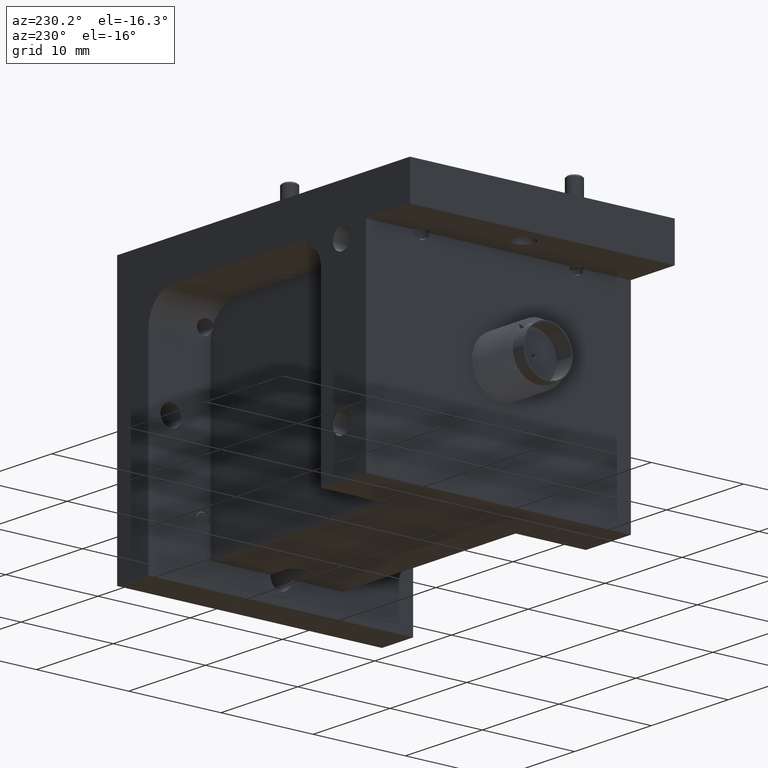
[diagram: clean part render]
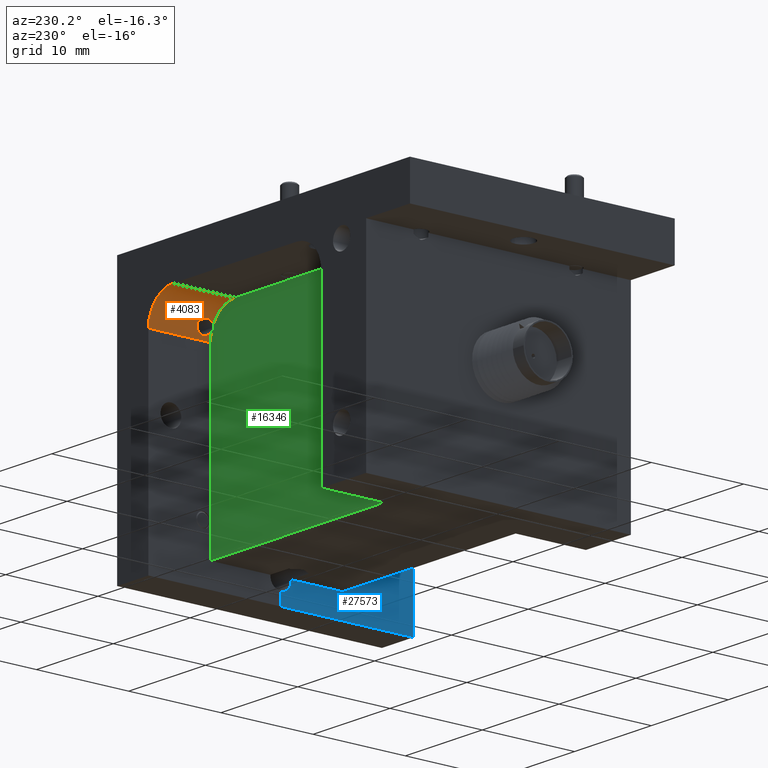
[diagram: same view with three faces highlighted in distinct colors, each labeled with its STEP entity id]
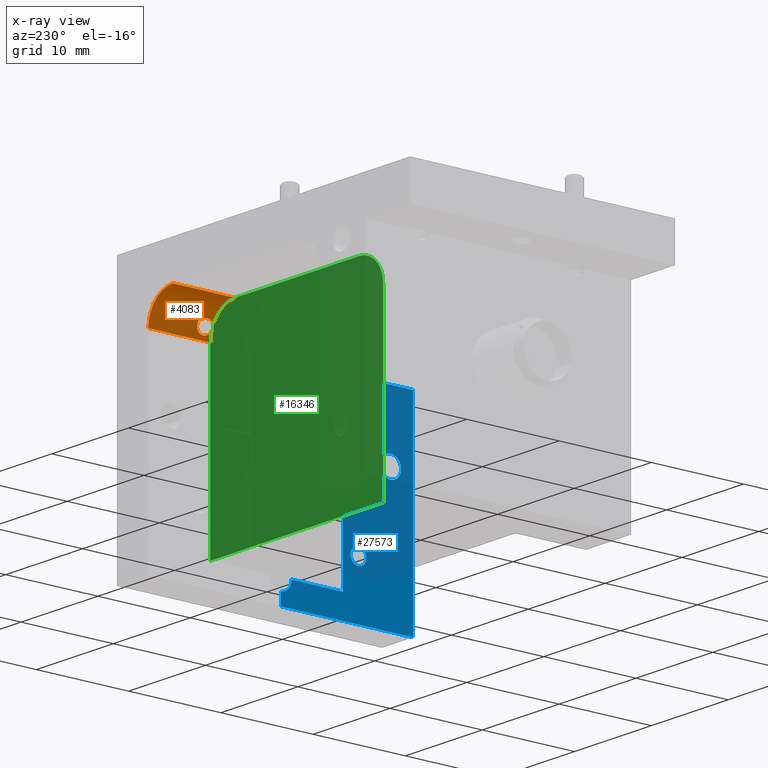
[diagram: x-ray of the same camera — body ghosted, the three highlighted faces saturated]
A machine part, auxiliary view with three faces highlighted in distinct colors.
The next image is the same camera in x-ray (body ghosted, the three faces saturated) — at least one of them is partly hidden behind the body in this view.
Their STEP definitions:

[orange] entity #4083 — the highlighted cylindrical surface (partial cylindrical patch) has radius 3.175 mm, axis along (0, -1, 0).
#79 = CARTESIAN_POINT ( 'NONE',  ( 0.5887035616225907400, 0.8964563036812591700, 0.2979563036810608500 ) ) ;
#531 = ORIENTED_EDGE ( 'NONE', *, *, #28398, .F. ) ;
#1275 = DIRECTION ( 'NONE',  ( 0.0000000000000000000, 1.000000000000000000, 0.0000000000000000000 ) ) ;
#1353 = VERTEX_POINT ( 'NONE', #23180 ) ;
#2371 = VECTOR ( 'NONE', #28613, 39.37007874015748100 ) ;
#2441 = AXIS2_PLACEMENT_3D ( 'NONE', #3128, #20271, #5606 ) ;
#2612 = EDGE_CURVE ( 'NONE', #18285, #20434, #30743, .T. ) ;
#2718 = DIRECTION ( 'NONE',  ( -0.0000000000000000000, 1.000000000000000000, 0.0000000000000000000 ) ) ;
#3128 = CARTESIAN_POINT ( 'NONE',  ( 0.4650000000000001400, 1.129999999999999900, 0.2800000000000001400 ) ) ;
#3138 = CYLINDRICAL_SURFACE ( 'NONE', #20884, 0.1250000000000000000 ) ;
#4010 = CARTESIAN_POINT ( 'NONE',  ( 0.5884304576318797300, 0.8826862379350286500, 0.3001560212217959700 ) ) ;
#4083 = ADVANCED_FACE ( 'NONE', ( #21926 ), #3138, .F. ) ;
#4356 = CARTESIAN_POINT ( 'NONE',  ( 0.4650000000000001400, 0.8649999999999997700, 0.4050000000000001400 ) ) ;
#4733 = VERTEX_POINT ( 'NONE', #11362 ) ;
#4753 = CARTESIAN_POINT ( 'NONE',  ( 0.5725381163978831000, 0.8693965829894760900, 0.3438524915242256500 ) ) ;
#5606 = DIRECTION ( 'NONE',  ( -1.639108796198557500E-015, 0.0000000000000000000, 1.000000000000000000 ) ) ;
#6596 = CARTESIAN_POINT ( 'NONE',  ( 0.5885395457930509000, 0.9069196680846576300, 0.2992033168752212800 ) ) ;
#6603 = CARTESIAN_POINT ( 'NONE',  ( 0.5887035616225907400, 0.8964563036812591700, 0.2979563036810608500 ) ) ;
#6984 = CARTESIAN_POINT ( 'NONE',  ( 0.5749999999999996200, 0.9290077450612442800, 0.3393717104351906500 ) ) ;
#7078 = CARTESIAN_POINT ( 'NONE',  ( 0.5679611242179438700, 0.8852895754666922900, 0.3509239926664147200 ) ) ;
#7342 = ORIENTED_EDGE ( 'NONE', *, *, #10667, .F. ) ;
#7484 = AXIS2_PLACEMENT_3D ( 'NONE', #14747, #27584, #22650 ) ;
#9000 = CARTESIAN_POINT ( 'NONE',  ( 0.5834222167934290900, 0.9284415346381825800, 0.3203487204907657900 ) ) ;
#9050 = AXIS2_PLACEMENT_3D ( 'NONE', #11572, #1275, #23693 ) ;
#9080 = EDGE_CURVE ( 'NONE', #12549, #18285, #27101, .T. ) ;
#9432 = CARTESIAN_POINT ( 'NONE',  ( 0.5730253427130611600, 0.9247359704974970100, 0.3430302255760053800 ) ) ;
#9546 = CARTESIAN_POINT ( 'NONE',  ( 0.5671314224633633400, 0.8912989909759003700, 0.3520707190618338500 ) ) ;
#9680 = DIRECTION ( 'NONE',  ( 0.0000000000000000000, -1.000000000000000000, 0.0000000000000000000 ) ) ;
#10299 = DIRECTION ( 'NONE',  ( 0.0000000000000000000, 0.0000000000000000000, -1.000000000000000000 ) ) ;
#10667 = EDGE_CURVE ( 'NONE', #29294, #21017, #20281, .T. ) ;
#10685 = CARTESIAN_POINT ( 'NONE',  ( 0.5745023042686414600, 0.8649999999999998800, 0.3402847025360324900 ) ) ;
#10932 = ORIENTED_EDGE ( 'NONE', *, *, #18978, .F. ) ;
#10984 = EDGE_LOOP ( 'NONE', ( #19737, #22942, #31208, #7342, #10932, #531, #15188, #30426 ) ) ;
#11362 = CARTESIAN_POINT ( 'NONE',  ( 0.5899999999999998600, 0.8649999999999997700, 0.2800000000000000800 ) ) ;
#11572 = CARTESIAN_POINT ( 'NONE',  ( 0.4650000000000001400, 0.8649999999999997700, 0.2800000000000001400 ) ) ;
#11866 = CARTESIAN_POINT ( 'NONE',  ( 0.5711381327101857600, 0.9198437458389165900, 0.3460810377277372400 ) ) ;
#12549 = VERTEX_POINT ( 'NONE', #23263 ) ;
#12990 = CIRCLE ( 'NONE', #2441, 0.1250000000000000300 ) ;
#13863 = CARTESIAN_POINT ( 'NONE',  ( 0.4650000000000002500, 0.8649999999999997700, 0.4050000000000001400 ) ) ;
#14039 = CARTESIAN_POINT ( 'NONE',  ( 0.5870319807642678800, 0.9203288492447576600, 0.3074067752213400800 ) ) ;
#14335 = CARTESIAN_POINT ( 'NONE',  ( 0.5707051661074288300, 0.8743394731649422000, 0.3467654378714719600 ) ) ;
#14437 = EDGE_CURVE ( 'NONE', #20434, #21017, #19646, .T. ) ;
#14451 = CARTESIAN_POINT ( 'NONE',  ( 0.5672770762093809500, 0.9031670767750253900, 0.3518638691036063400 ) ) ;
#14747 = CARTESIAN_POINT ( 'NONE',  ( 0.4650000000000001400, 0.8649999999999997700, 0.2800000000000001400 ) ) ;
#15188 = ORIENTED_EDGE ( 'NONE', *, *, #15564, .F. ) ;
#15564 = EDGE_CURVE ( 'NONE', #4733, #23652, #23882, .T. ) ;
#16384 = CARTESIAN_POINT ( 'NONE',  ( 0.5774510828940916400, 0.9301120121703486700, 0.3348305052656943600 ) ) ;
#16497 = CARTESIAN_POINT ( 'NONE',  ( 0.5848971691627562500, 0.9264056736409112000, 0.3156034335990380900 ) ) ;
#18285 = VERTEX_POINT ( 'NONE', #79 ) ;
#18978 = EDGE_CURVE ( 'NONE', #1353, #29294, #24594, .T. ) ;
#19524 = CARTESIAN_POINT ( 'NONE',  ( 0.5900000000000001900, 1.129999999999999900, 0.2800000000000000800 ) ) ;
#19646 = B_SPLINE_CURVE_WITH_KNOTS ( 'NONE', 3,
 ( #6984, #9432, #11866, #28996, #14451, #9546, #7078, #14335, #4753, #21865 ),
 .UNSPECIFIED., .F., .F.,
 ( 4, 2, 2, 2, 4 ),
 ( 0.0001515618318229038900, 0.0006047793008217363900, 0.001057996769820569100, 0.001511214238819401600, 0.001964431707818234100 ),
 .UNSPECIFIED. ) ;
#19737 = ORIENTED_EDGE ( 'NONE', *, *, #9080, .T. ) ;
#20271 = DIRECTION ( 'NONE',  ( -0.0000000000000000000, -1.000000000000000000, -0.0000000000000000000 ) ) ;
#20281 = CIRCLE ( 'NONE', #7484, 0.1250000000000000300 ) ;
#20434 = VERTEX_POINT ( 'NONE', #21510 ) ;
#20884 = AXIS2_PLACEMENT_3D ( 'NONE', #24325, #9680, #10299 ) ;
#21017 = VERTEX_POINT ( 'NONE', #10685 ) ;
#21441 = CARTESIAN_POINT ( 'NONE',  ( 0.5749999999999996200, 0.9290077450612442800, 0.3393717104351906500 ) ) ;
#21510 = CARTESIAN_POINT ( 'NONE',  ( 0.5749999999999996200, 0.9290077450612442800, 0.3393717104351906500 ) ) ;
#21865 = CARTESIAN_POINT ( 'NONE',  ( 0.5745023042686414600, 0.8649999999999998800, 0.3402847025360324900 ) ) ;
#21926 = FACE_OUTER_BOUND ( 'NONE', #10984, .T. ) ;
#22650 = DIRECTION ( 'NONE',  ( 0.0000000000000000000, 0.0000000000000000000, 1.000000000000000000 ) ) ;
#22942 = ORIENTED_EDGE ( 'NONE', *, *, #2612, .T. ) ;
#23180 = CARTESIAN_POINT ( 'NONE',  ( 0.4650000000000002500, 1.129999999999999900, 0.4050000000000001400 ) ) ;
#23263 = CARTESIAN_POINT ( 'NONE',  ( 0.5834492812939922100, 0.8649999999999997700, 0.3199345434547180000 ) ) ;
#23652 = VERTEX_POINT ( 'NONE', #19524 ) ;
#23693 = DIRECTION ( 'NONE',  ( 0.0000000000000000000, 0.0000000000000000000, 1.000000000000000000 ) ) ;
#23694 = CARTESIAN_POINT ( 'NONE',  ( 0.5834492812939922100, 0.8649999999999997700, 0.3199345434547180000 ) ) ;
#23808 = CARTESIAN_POINT ( 'NONE',  ( 0.5855495944801175600, 0.8672818070063641500, 0.3137048343891579700 ) ) ;
#23882 = LINE ( 'NONE', #29672, #28463 ) ;
#24325 = CARTESIAN_POINT ( 'NONE',  ( 0.4650000000000001400, 0.0000000000000000000, 0.2800000000000001400 ) ) ;
#24594 = LINE ( 'NONE', #4356, #2371 ) ;
#26059 = CARTESIAN_POINT ( 'NONE',  ( 0.5868701424246590700, 0.8714901715061379500, 0.3080893475912502300 ) ) ;
#26250 = CARTESIAN_POINT ( 'NONE',  ( 0.5887035616225907400, 0.8964563036812591700, 0.2979563036810608500 ) ) ;
#27101 = B_SPLINE_CURVE_WITH_KNOTS ( 'NONE', 3,
 ( #23694, #23808, #26059, #4010, #28285, #6603 ),
 .UNSPECIFIED., .F., .F.,
 ( 4, 2, 4 ),
 ( 0.0000000000000000000, 0.0005229522095895671900, 0.001045904419179134400 ),
 .UNSPECIFIED. ) ;
#27584 = DIRECTION ( 'NONE',  ( 0.0000000000000000000, 1.000000000000000000, 0.0000000000000000000 ) ) ;
#28285 = CARTESIAN_POINT ( 'NONE',  ( 0.5887035616225716500, 0.8895785185847812100, 0.2979563036811775900 ) ) ;
#28398 = EDGE_CURVE ( 'NONE', #23652, #1353, #12990, .T. ) ;
#28463 = VECTOR ( 'NONE', #2718, 39.37007874015748100 ) ;
#28613 = DIRECTION ( 'NONE',  ( -0.0000000000000000000, -1.000000000000000000, 0.0000000000000000000 ) ) ;
#28714 = CARTESIAN_POINT ( 'NONE',  ( 0.5877092290867999000, 0.9162733315895667000, 0.3039422607680791200 ) ) ;
#28996 = CARTESIAN_POINT ( 'NONE',  ( 0.5682455434615868400, 0.9091107926095516300, 0.3505149949847631300 ) ) ;
#29294 = VERTEX_POINT ( 'NONE', #13863 ) ;
#29672 = CARTESIAN_POINT ( 'NONE',  ( 0.5900000000000001900, 1.129999999999999900, 0.2800000000000000300 ) ) ;
#30426 = ORIENTED_EDGE ( 'NONE', *, *, #30923, .F. ) ;
#30515 = CIRCLE ( 'NONE', #9050, 0.1250000000000000300 ) ;
#30743 = B_SPLINE_CURVE_WITH_KNOTS ( 'NONE', 3,
 ( #26250, #31272, #6596, #28714, #14039, #16497, #9000, #31064, #16384, #21441 ),
 .UNSPECIFIED., .F., .F.,
 ( 4, 2, 2, 2, 4 ),
 ( 0.001045904419179134400, 0.001443005992771600000, 0.001840107566364065600, 0.002237209139956533300, 0.002634310713549001100 ),
 .UNSPECIFIED. ) ;
#30923 = EDGE_CURVE ( 'NONE', #12549, #4733, #30515, .T. ) ;
#31064 = CARTESIAN_POINT ( 'NONE',  ( 0.5796771802956074400, 0.9302844158440143300, 0.3300098489795828500 ) ) ;
#31208 = ORIENTED_EDGE ( 'NONE', *, *, #14437, .T. ) ;
#31272 = CARTESIAN_POINT ( 'NONE',  ( 0.5887035616225678700, 0.9016789210343697500, 0.2979563036812035700 ) ) ;

[blue] entity #27573 — the highlighted planar face has unit normal (1, -0, 0).
#1072 = VERTEX_POINT ( 'NONE', #19387 ) ;
#1250 = CARTESIAN_POINT ( 'NONE',  ( 0.5900000000000007500, 0.09624999999999989100, -2.731847993664263200E-016 ) ) ;
#1292 = AXIS2_PLACEMENT_3D ( 'NONE', #16431, #3946, #6726 ) ;
#1307 = EDGE_CURVE ( 'NONE', #11468, #18247, #16291, .T. ) ;
#1466 = CARTESIAN_POINT ( 'NONE',  ( 0.5900000000000009700, 0.2335436963188040900, -0.3649563036811925300 ) ) ;
#1706 = CARTESIAN_POINT ( 'NONE',  ( 0.5900000000000007500, 0.09624999999999989100, 0.04449999999999947100 ) ) ;
#1811 = DIRECTION ( 'NONE',  ( 1.000000000000000000, -1.387778780781150200E-017, 5.025507569144795400E-016 ) ) ;
#2235 = ORIENTED_EDGE ( 'NONE', *, *, #5697, .F. ) ;
#2977 = VERTEX_POINT ( 'NONE', #1466 ) ;
#3225 = EDGE_CURVE ( 'NONE', #5963, #25840, #21975, .T. ) ;
#3816 = VERTEX_POINT ( 'NONE', #13070 ) ;
#3946 = DIRECTION ( 'NONE',  ( 1.000000000000000000, -1.387778780781150200E-017, 5.025507569144795400E-016 ) ) ;
#4805 = ORIENTED_EDGE ( 'NONE', *, *, #22871, .T. ) ;
#5123 = AXIS2_PLACEMENT_3D ( 'NONE', #1250, #15923, #30388 ) ;
#5697 = EDGE_CURVE ( 'NONE', #25840, #3816, #15316, .T. ) ;
#5877 = CARTESIAN_POINT ( 'NONE',  ( 0.5900000000000009700, 0.5649999999999999500, -0.5650000000000001700 ) ) ;
#5888 = DIRECTION ( 'NONE',  ( 0.0000000000000000000, 0.0000000000000000000, -1.000000000000000000 ) ) ;
#5963 = VERTEX_POINT ( 'NONE', #12806 ) ;
#6098 = VECTOR ( 'NONE', #27250, 39.37007874015748100 ) ;
#6197 = DIRECTION ( 'NONE',  ( -5.025507569144795400E-016, -4.050170708694923500E-018, 1.000000000000000000 ) ) ;
#6726 = DIRECTION ( 'NONE',  ( 0.0000000000000000000, 0.0000000000000000000, -1.000000000000000000 ) ) ;
#6950 = VECTOR ( 'NONE', #20494, 39.37007874015748100 ) ;
#7545 = CARTESIAN_POINT ( 'NONE',  ( 0.5900000000000009700, 0.3000000000000000400, -0.4650000000000003600 ) ) ;
#8068 = LINE ( 'NONE', #20193, #6950 ) ;
#8097 = EDGE_CURVE ( 'NONE', #12849, #22332, #11012, .T. ) ;
#8567 = DIRECTION ( 'NONE',  ( 2.340848324502109100E-017, -4.050170708694930500E-018, 1.000000000000000000 ) ) ;
#9317 = ORIENTED_EDGE ( 'NONE', *, *, #29565, .T. ) ;
#9361 = ORIENTED_EDGE ( 'NONE', *, *, #16086, .T. ) ;
#10383 = CARTESIAN_POINT ( 'NONE',  ( 0.5900000000000009700, 0.5649999999999999500, -0.5650000000000001700 ) ) ;
#10741 = DIRECTION ( 'NONE',  ( 1.000000000000000000, -1.387778780781150200E-017, 5.025507569144795400E-016 ) ) ;
#11012 = CIRCLE ( 'NONE', #16208, 0.04449999999999974100 ) ;
#11108 = VECTOR ( 'NONE', #8567, 39.37007874015748100 ) ;
#11283 = EDGE_LOOP ( 'NONE', ( #20153, #21093, #29724, #26401, #9317, #9361, #2235 ) ) ;
#11468 = VERTEX_POINT ( 'NONE', #30369 ) ;
#11989 = AXIS2_PLACEMENT_3D ( 'NONE', #18344, #10741, #27856 ) ;
#12122 = ORIENTED_EDGE ( 'NONE', *, *, #26064, .T. ) ;
#12436 = EDGE_CURVE ( 'NONE', #25023, #2977, #21328, .T. ) ;
#12806 = CARTESIAN_POINT ( 'NONE',  ( 0.5900000000000009700, 0.5206582871327687400, -0.4650000000000003600 ) ) ;
#12849 = VERTEX_POINT ( 'NONE', #27339 ) ;
#12936 = ORIENTED_EDGE ( 'NONE', *, *, #8097, .T. ) ;
#13070 = CARTESIAN_POINT ( 'NONE',  ( 0.5900000000000009700, 0.3000000000000000400, 0.2799999999999997500 ) ) ;
#13202 = VECTOR ( 'NONE', #6197, 39.37007874015748100 ) ;
#13806 = CARTESIAN_POINT ( 'NONE',  ( 0.5900000000000007500, 0.09624999999999989100, -2.731847993664263200E-016 ) ) ;
#14216 = FACE_BOUND ( 'NONE', #22739, .T. ) ;
#14247 = DIRECTION ( 'NONE',  ( 0.0000000000000000000, 0.0000000000000000000, -1.000000000000000000 ) ) ;
#15316 = LINE ( 'NONE', #20896, #11108 ) ;
#15923 = DIRECTION ( 'NONE',  ( 1.000000000000000000, -1.387778780781150200E-017, 5.025507569144795400E-016 ) ) ;
#16086 = EDGE_CURVE ( 'NONE', #26720, #3816, #16955, .T. ) ;
#16208 = AXIS2_PLACEMENT_3D ( 'NONE', #13806, #1811, #14247 ) ;
#16217 = CIRCLE ( 'NONE', #5123, 0.04449999999999974100 ) ;
#16291 = LINE ( 'NONE', #5877, #13202 ) ;
#16431 = CARTESIAN_POINT ( 'NONE',  ( 0.5900000000000009700, 0.5649999999999999500, -0.4687500000000002800 ) ) ;
#16803 = DIRECTION ( 'NONE',  ( 1.387778780781711000E-017, 1.000000000000000000, 4.050170708698059000E-018 ) ) ;
#16876 = FACE_BOUND ( 'NONE', #28792, .T. ) ;
#16955 = LINE ( 'NONE', #29121, #26918 ) ;
#18120 = VECTOR ( 'NONE', #29199, 39.37007874015748100 ) ;
#18247 = VERTEX_POINT ( 'NONE', #28685 ) ;
#18344 = CARTESIAN_POINT ( 'NONE',  ( 0.5900000000000009700, 0.2335436963188040900, -0.3314563036811927200 ) ) ;
#18450 = CIRCLE ( 'NONE', #1292, 0.04449999999999975500 ) ;
#18998 = ORIENTED_EDGE ( 'NONE', *, *, #12436, .T. ) ;
#19231 = CARTESIAN_POINT ( 'NONE',  ( 0.5900000000000006400, 6.829619984160658000E-017, 0.2799999999999997500 ) ) ;
#19387 = CARTESIAN_POINT ( 'NONE',  ( 0.5900000000000009700, 6.829619984160658000E-017, -0.5650000000000001700 ) ) ;
#19463 = EDGE_CURVE ( 'NONE', #5963, #18247, #18450, .T. ) ;
#19782 = EDGE_CURVE ( 'NONE', #11468, #1072, #8068, .T. ) ;
#19987 = FACE_OUTER_BOUND ( 'NONE', #11283, .T. ) ;
#19999 = CARTESIAN_POINT ( 'NONE',  ( 0.5900000000000009700, 6.829619984160658000E-017, -0.5650000000000001700 ) ) ;
#20153 = ORIENTED_EDGE ( 'NONE', *, *, #3225, .F. ) ;
#20193 = CARTESIAN_POINT ( 'NONE',  ( 0.5900000000000009700, 0.5649999999999999500, -0.5650000000000001700 ) ) ;
#20494 = DIRECTION ( 'NONE',  ( -1.387778780781711000E-017, -1.000000000000000000, -4.050170708698059000E-018 ) ) ;
#20748 = CARTESIAN_POINT ( 'NONE',  ( 0.5900000000000009700, 0.2335436963188040900, -0.3314563036811927200 ) ) ;
#20896 = CARTESIAN_POINT ( 'NONE',  ( 0.5900000000000009700, 0.3000000000000000400, -0.4650000000000003600 ) ) ;
#21093 = ORIENTED_EDGE ( 'NONE', *, *, #19463, .T. ) ;
#21328 = CIRCLE ( 'NONE', #11989, 0.03349999999999979400 ) ;
#21975 = LINE ( 'NONE', #24609, #18120 ) ;
#22332 = VERTEX_POINT ( 'NONE', #1706 ) ;
#22348 = AXIS2_PLACEMENT_3D ( 'NONE', #20748, #23193, #5888 ) ;
#22739 = EDGE_LOOP ( 'NONE', ( #4805, #18998 ) ) ;
#22871 = EDGE_CURVE ( 'NONE', #2977, #25023, #25615, .T. ) ;
#23193 = DIRECTION ( 'NONE',  ( 1.000000000000000000, -1.387778780781150200E-017, 5.025507569144795400E-016 ) ) ;
#24135 = CARTESIAN_POINT ( 'NONE',  ( 0.5900000000000009700, 0.2335436963188040900, -0.2979563036811929700 ) ) ;
#24609 = CARTESIAN_POINT ( 'NONE',  ( 0.5900000000000009700, 0.5649999999999999500, -0.4650000000000003600 ) ) ;
#24851 = DIRECTION ( 'NONE',  ( 1.000000000000000000, -1.387778780781150300E-017, 5.025507569144795400E-016 ) ) ;
#25023 = VERTEX_POINT ( 'NONE', #24135 ) ;
#25615 = CIRCLE ( 'NONE', #22348, 0.03349999999999979400 ) ;
#25840 = VERTEX_POINT ( 'NONE', #7545 ) ;
#26064 = EDGE_CURVE ( 'NONE', #22332, #12849, #16217, .T. ) ;
#26401 = ORIENTED_EDGE ( 'NONE', *, *, #19782, .T. ) ;
#26720 = VERTEX_POINT ( 'NONE', #19231 ) ;
#26918 = VECTOR ( 'NONE', #16803, 39.37007874015748100 ) ;
#27250 = DIRECTION ( 'NONE',  ( -5.025507569144795400E-016, -4.050170708694923500E-018, 1.000000000000000000 ) ) ;
#27339 = CARTESIAN_POINT ( 'NONE',  ( 0.5900000000000007500, 0.09624999999999989100, -0.04450000000000001200 ) ) ;
#27573 = ADVANCED_FACE ( 'NONE', ( #14216, #16876, #19987 ), #30162, .F. ) ;
#27602 = DIRECTION ( 'NONE',  ( -5.025507569144795400E-016, -4.050170708694923500E-018, 1.000000000000000000 ) ) ;
#27856 = DIRECTION ( 'NONE',  ( 0.0000000000000000000, 0.0000000000000000000, -1.000000000000000000 ) ) ;
#28685 = CARTESIAN_POINT ( 'NONE',  ( 0.5900000000000009700, 0.5649999999999999500, -0.5132500000000001000 ) ) ;
#28792 = EDGE_LOOP ( 'NONE', ( #12936, #12122 ) ) ;
#29121 = CARTESIAN_POINT ( 'NONE',  ( 0.5900000000000006400, 0.3000000000000000400, 0.2799999999999998000 ) ) ;
#29199 = DIRECTION ( 'NONE',  ( -1.387778780781711000E-017, -1.000000000000000000, -4.050170708698059000E-018 ) ) ;
#29565 = EDGE_CURVE ( 'NONE', #1072, #26720, #30576, .T. ) ;
#29724 = ORIENTED_EDGE ( 'NONE', *, *, #1307, .F. ) ;
#30162 = PLANE ( 'NONE',  #31337 ) ;
#30369 = CARTESIAN_POINT ( 'NONE',  ( 0.5900000000000009700, 0.5649999999999999500, -0.5650000000000001700 ) ) ;
#30388 = DIRECTION ( 'NONE',  ( 0.0000000000000000000, 0.0000000000000000000, -1.000000000000000000 ) ) ;
#30576 = LINE ( 'NONE', #19999, #6098 ) ;
#31337 = AXIS2_PLACEMENT_3D ( 'NONE', #10383, #24851, #27602 ) ;

[green] entity #16346 — the highlighted planar face has unit normal (0, 1, 0).
#767 = EDGE_CURVE ( 'NONE', #19769, #27495, #14411, .T. ) ;
#1049 = CARTESIAN_POINT ( 'NONE',  ( -0.2950000000000001500, 0.8649999999999997700, 0.4050000000000001400 ) ) ;
#1275 = DIRECTION ( 'NONE',  ( 0.0000000000000000000, 1.000000000000000000, 0.0000000000000000000 ) ) ;
#1316 = VERTEX_POINT ( 'NONE', #8601 ) ;
#1600 = LINE ( 'NONE', #8577, #13860 ) ;
#2169 = VECTOR ( 'NONE', #19417, 39.37007874015748100 ) ;
#3523 = CARTESIAN_POINT ( 'NONE',  ( 0.0000000000000000000, 0.8649999999999997700, 0.0000000000000000000 ) ) ;
#3849 = EDGE_CURVE ( 'NONE', #12549, #16234, #1600, .T. ) ;
#4044 = VERTEX_POINT ( 'NONE', #14366 ) ;
#4733 = VERTEX_POINT ( 'NONE', #11362 ) ;
#5444 = CARTESIAN_POINT ( 'NONE',  ( 0.5899999999999997500, 0.8649999999999997700, -0.4649999999999999100 ) ) ;
#7133 = DIRECTION ( 'NONE',  ( 0.0000000000000000000, 1.000000000000000000, 0.0000000000000000000 ) ) ;
#7484 = AXIS2_PLACEMENT_3D ( 'NONE', #14747, #27584, #22650 ) ;
#8577 = CARTESIAN_POINT ( 'NONE',  ( 0.7499999999999996700, 0.8649999999999997700, 0.3199345434547180000 ) ) ;
#8601 = CARTESIAN_POINT ( 'NONE',  ( -0.1700000000000001800, 0.8649999999999997700, 0.4050000000000001400 ) ) ;
#9050 = AXIS2_PLACEMENT_3D ( 'NONE', #11572, #1275, #23693 ) ;
#9446 = VECTOR ( 'NONE', #24385, 39.37007874015748100 ) ;
#9529 = ORIENTED_EDGE ( 'NONE', *, *, #14192, .T. ) ;
#9793 = DIRECTION ( 'NONE',  ( 0.0000000000000000000, 0.0000000000000000000, 1.000000000000000000 ) ) ;
#9860 = CARTESIAN_POINT ( 'NONE',  ( 0.5734046348194860000, 0.8649999999999997700, 0.3335240664508348800 ) ) ;
#10667 = EDGE_CURVE ( 'NONE', #29294, #21017, #20281, .T. ) ;
#10685 = CARTESIAN_POINT ( 'NONE',  ( 0.5745023042686414600, 0.8649999999999998800, 0.3402847025360324900 ) ) ;
#11087 = EDGE_LOOP ( 'NONE', ( #20334, #21269, #11692, #12466, #17437, #30825, #9529, #21014, #28120 ) ) ;
#11336 = LINE ( 'NONE', #21524, #19783 ) ;
#11362 = CARTESIAN_POINT ( 'NONE',  ( 0.5899999999999998600, 0.8649999999999997700, 0.2800000000000000800 ) ) ;
#11572 = CARTESIAN_POINT ( 'NONE',  ( 0.4650000000000001400, 0.8649999999999997700, 0.2800000000000001400 ) ) ;
#11692 = ORIENTED_EDGE ( 'NONE', *, *, #24147, .T. ) ;
#12356 = CARTESIAN_POINT ( 'NONE',  ( -0.2950000000000002600, 0.8649999999999997700, -0.4649999999999999100 ) ) ;
#12466 = ORIENTED_EDGE ( 'NONE', *, *, #767, .T. ) ;
#12549 = VERTEX_POINT ( 'NONE', #23263 ) ;
#13061 = AXIS2_PLACEMENT_3D ( 'NONE', #24463, #7133, #9793 ) ;
#13435 = DIRECTION ( 'NONE',  ( 0.0000000000000000000, 1.000000000000000000, 0.0000000000000000000 ) ) ;
#13860 = VECTOR ( 'NONE', #25514, 39.37007874015748100 ) ;
#13863 = CARTESIAN_POINT ( 'NONE',  ( 0.4650000000000002500, 0.8649999999999997700, 0.4050000000000001400 ) ) ;
#14192 = EDGE_CURVE ( 'NONE', #1316, #29294, #27764, .T. ) ;
#14366 = CARTESIAN_POINT ( 'NONE',  ( -0.2950000000000001500, 0.8649999999999997700, 0.2800000000000000800 ) ) ;
#14411 = LINE ( 'NONE', #12356, #9446 ) ;
#14747 = CARTESIAN_POINT ( 'NONE',  ( 0.4650000000000001400, 0.8649999999999997700, 0.2800000000000001400 ) ) ;
#14753 = CARTESIAN_POINT ( 'NONE',  ( 0.5745023042686414600, 0.8649999999999998800, 0.3402847025360324900 ) ) ;
#16234 = VERTEX_POINT ( 'NONE', #17867 ) ;
#16311 = AXIS2_PLACEMENT_3D ( 'NONE', #3523, #13435, #30779 ) ;
#16346 = ADVANCED_FACE ( 'NONE', ( #18509 ), #20759, .T. ) ;
#16480 = CARTESIAN_POINT ( 'NONE',  ( 0.5736088429696709600, 0.8649999999999997700, 0.3266662997925167700 ) ) ;
#17437 = ORIENTED_EDGE ( 'NONE', *, *, #31108, .T. ) ;
#17867 = CARTESIAN_POINT ( 'NONE',  ( 0.5749999999999996200, 0.8649999999999997700, 0.3199345434547174500 ) ) ;
#18509 = FACE_OUTER_BOUND ( 'NONE', #11087, .T. ) ;
#18530 = DIRECTION ( 'NONE',  ( 1.000000000000000000, 0.0000000000000000000, 0.0000000000000000000 ) ) ;
#19417 = DIRECTION ( 'NONE',  ( 1.177520686924251500E-016, 0.0000000000000000000, 1.000000000000000000 ) ) ;
#19769 = VERTEX_POINT ( 'NONE', #5444 ) ;
#19783 = VECTOR ( 'NONE', #26633, 39.37007874015748100 ) ;
#20281 = CIRCLE ( 'NONE', #7484, 0.1250000000000000300 ) ;
#20334 = ORIENTED_EDGE ( 'NONE', *, *, #3849, .F. ) ;
#20759 = PLANE ( 'NONE',  #16311 ) ;
#21014 = ORIENTED_EDGE ( 'NONE', *, *, #10667, .T. ) ;
#21017 = VERTEX_POINT ( 'NONE', #10685 ) ;
#21269 = ORIENTED_EDGE ( 'NONE', *, *, #30923, .T. ) ;
#21524 = CARTESIAN_POINT ( 'NONE',  ( 0.5899999999999997500, 0.8649999999999997700, -0.4649999999999999100 ) ) ;
#22068 = CARTESIAN_POINT ( 'NONE',  ( -0.2950000000000002600, 0.8649999999999997700, -0.4649999999999999100 ) ) ;
#22491 = LINE ( 'NONE', #29024, #2169 ) ;
#22650 = DIRECTION ( 'NONE',  ( 0.0000000000000000000, 0.0000000000000000000, 1.000000000000000000 ) ) ;
#23263 = CARTESIAN_POINT ( 'NONE',  ( 0.5834492812939922100, 0.8649999999999997700, 0.3199345434547180000 ) ) ;
#23693 = DIRECTION ( 'NONE',  ( 0.0000000000000000000, 0.0000000000000000000, 1.000000000000000000 ) ) ;
#24147 = EDGE_CURVE ( 'NONE', #4733, #19769, #11336, .T. ) ;
#24385 = DIRECTION ( 'NONE',  ( -1.000000000000000000, -0.0000000000000000000, -0.0000000000000000000 ) ) ;
#24463 = CARTESIAN_POINT ( 'NONE',  ( -0.1700000000000001800, 0.8649999999999997700, 0.2800000000000001400 ) ) ;
#25446 = EDGE_CURVE ( 'NONE', #16234, #21017, #28162, .T. ) ;
#25514 = DIRECTION ( 'NONE',  ( -1.000000000000000000, 0.0000000000000000000, 0.0000000000000000000 ) ) ;
#26633 = DIRECTION ( 'NONE',  ( -1.570027582565668500E-016, -0.0000000000000000000, -1.000000000000000000 ) ) ;
#26866 = EDGE_CURVE ( 'NONE', #4044, #1316, #30722, .T. ) ;
#27495 = VERTEX_POINT ( 'NONE', #22068 ) ;
#27584 = DIRECTION ( 'NONE',  ( 0.0000000000000000000, 1.000000000000000000, 0.0000000000000000000 ) ) ;
#27764 = LINE ( 'NONE', #1049, #31617 ) ;
#28120 = ORIENTED_EDGE ( 'NONE', *, *, #25446, .F. ) ;
#28162 = B_SPLINE_CURVE_WITH_KNOTS ( 'NONE', 3,
 ( #31149, #16480, #9860, #14753 ),
 .UNSPECIFIED., .F., .F.,
 ( 4, 4 ),
 ( 0.004268894280361447200, 0.004772421645465624300 ),
 .UNSPECIFIED. ) ;
#29024 = CARTESIAN_POINT ( 'NONE',  ( -0.2950000000000002600, 0.8649999999999997700, -0.4649999999999999100 ) ) ;
#29294 = VERTEX_POINT ( 'NONE', #13863 ) ;
#30515 = CIRCLE ( 'NONE', #9050, 0.1250000000000000300 ) ;
#30722 = CIRCLE ( 'NONE', #13061, 0.1250000000000000000 ) ;
#30779 = DIRECTION ( 'NONE',  ( 0.0000000000000000000, -0.0000000000000000000, 1.000000000000000000 ) ) ;
#30825 = ORIENTED_EDGE ( 'NONE', *, *, #26866, .T. ) ;
#30923 = EDGE_CURVE ( 'NONE', #12549, #4733, #30515, .T. ) ;
#31108 = EDGE_CURVE ( 'NONE', #27495, #4044, #22491, .T. ) ;
#31149 = CARTESIAN_POINT ( 'NONE',  ( 0.5749999999999996200, 0.8649999999999997700, 0.3199345434547174500 ) ) ;
#31617 = VECTOR ( 'NONE', #18530, 39.37007874015748100 ) ;